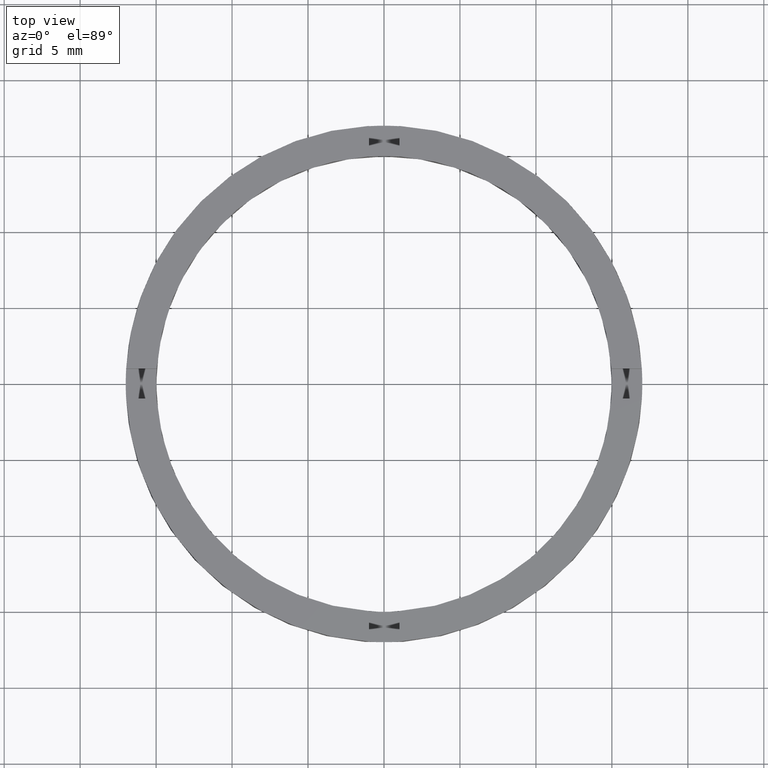
[diagram: clean part render]
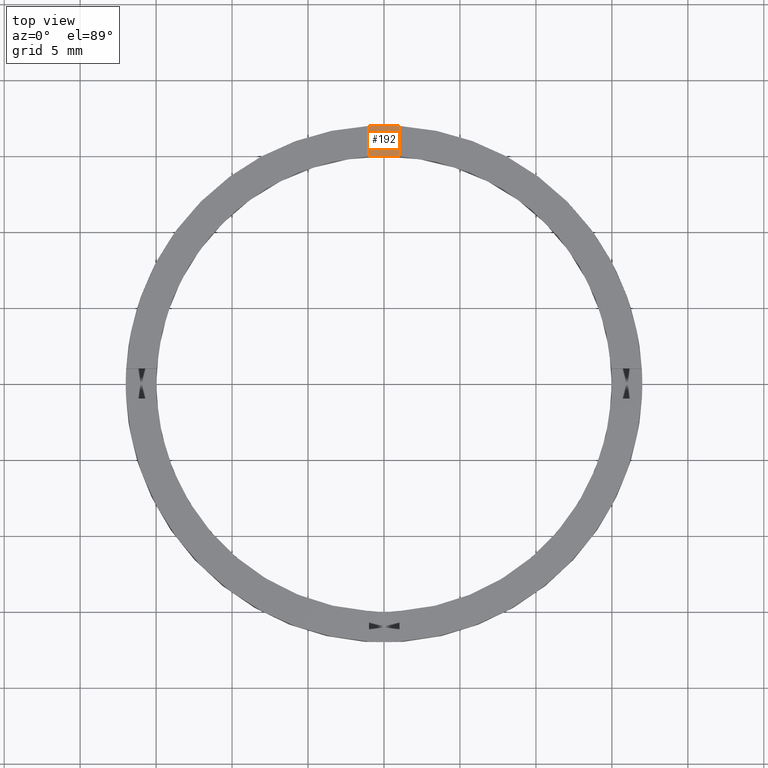
[diagram: same view with one face highlighted and labeled with its STEP entity id]
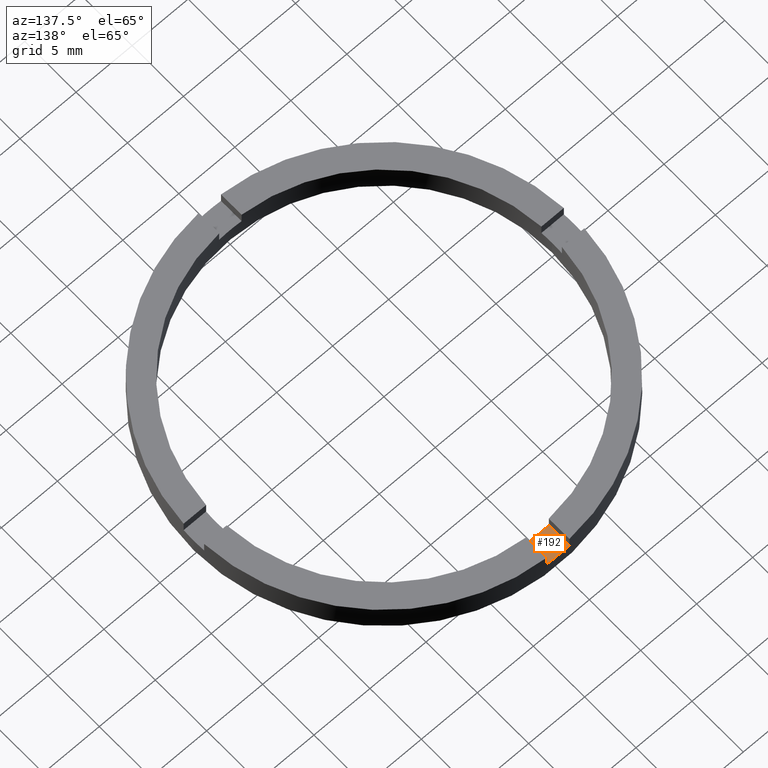
[diagram: same view with one face highlighted and labeled with its STEP entity id]
A machine part, top view. The second image highlights one B-rep face of the part: STEP entity #192.
A second angle (auxiliary view) of the same face is appended — the face is thin or edge-on in the first view.
In plain terms, the highlighted planar face has unit normal (0, -0, 1).
Its self-contained STEP definition (entity closure, byte-faithful):
#34 = DIRECTION ( 'NONE',  ( 0.000000000000000000, -0.000000000000000000, 1.000000000000000000 ) ) ;
#42 = CARTESIAN_POINT ( 'NONE',  ( 0.000000000000000000, 0.000000000000000000, 1.500000000000000000 ) ) ;
#44 = VERTEX_POINT ( 'NONE', #529 ) ;
#53 = PLANE ( 'NONE',  #319 ) ;
#80 = CARTESIAN_POINT ( 'NONE',  ( 0.9999999999999749090, 14.96662954709576709, 1.500000000000000000 ) ) ;
#89 = VERTEX_POINT ( 'NONE', #80 ) ;
#91 = ORIENTED_EDGE ( 'NONE', *, *, #256, .F. ) ;
#99 = DIRECTION ( 'NONE',  ( 0.000000000000000000, -0.000000000000000000, 1.000000000000000000 ) ) ;
#134 = LINE ( 'NONE', #480, #685 ) ;
#135 = VECTOR ( 'NONE', #370, 1000.000000000000000 ) ;
#192 = ADVANCED_FACE ( 'NONE', ( #434 ), #53, .T. ) ;
#211 = CARTESIAN_POINT ( 'NONE',  ( 0.9999999999999749090, 16.97056274847714263, 1.500000000000000000 ) ) ;
#256 = EDGE_CURVE ( 'NONE', #89, #44, #453, .T. ) ;
#274 = DIRECTION ( 'NONE',  ( -0.000000000000000000, -1.000000000000000000, -0.000000000000000000 ) ) ;
#316 = CARTESIAN_POINT ( 'NONE',  ( 0.9999999999999749090, 7.000000000000000888, 1.500000000000000000 ) ) ;
#319 = AXIS2_PLACEMENT_3D ( 'NONE', #395, #533, #478 ) ;
#342 = ORIENTED_EDGE ( 'NONE', *, *, #660, .T. ) ;
#366 = ORIENTED_EDGE ( 'NONE', *, *, #731, .T. ) ;
#370 = DIRECTION ( 'NONE',  ( 0.000000000000000000, 1.000000000000000000, 0.000000000000000000 ) ) ;
#395 = CARTESIAN_POINT ( 'NONE',  ( 0.000000000000000000, 0.000000000000000000, 1.500000000000000000 ) ) ;
#434 = FACE_OUTER_BOUND ( 'NONE', #542, .T. ) ;
#453 = CIRCLE ( 'NONE', #475, 15.00000000000000000 ) ;
#475 = AXIS2_PLACEMENT_3D ( 'NONE', #663, #99, #602 ) ;
#478 = DIRECTION ( 'NONE',  ( 1.000000000000000000, 0.000000000000000000, -0.000000000000000000 ) ) ;
#480 = CARTESIAN_POINT ( 'NONE',  ( -1.000000000000025091, 7.000000000000000888, 1.500000000000000000 ) ) ;
#529 = CARTESIAN_POINT ( 'NONE',  ( -1.000000000000025091, 14.96662954709576354, 1.500000000000000000 ) ) ;
#533 = DIRECTION ( 'NONE',  ( 0.000000000000000000, -0.000000000000000000, 1.000000000000000000 ) ) ;
#534 = EDGE_CURVE ( 'NONE', #574, #609, #673, .T. ) ;
#542 = EDGE_LOOP ( 'NONE', ( #637, #366, #91, #342 ) ) ;
#574 = VERTEX_POINT ( 'NONE', #211 ) ;
#602 = DIRECTION ( 'NONE',  ( 1.000000000000000000, 0.000000000000000000, 0.000000000000000000 ) ) ;
#609 = VERTEX_POINT ( 'NONE', #751 ) ;
#617 = DIRECTION ( 'NONE',  ( 1.000000000000000000, 0.000000000000000000, 0.000000000000000000 ) ) ;
#637 = ORIENTED_EDGE ( 'NONE', *, *, #534, .T. ) ;
#660 = EDGE_CURVE ( 'NONE', #89, #574, #672, .T. ) ;
#663 = CARTESIAN_POINT ( 'NONE',  ( 0.000000000000000000, 0.000000000000000000, 1.500000000000000000 ) ) ;
#672 = LINE ( 'NONE', #316, #135 ) ;
#673 = CIRCLE ( 'NONE', #711, 17.00000000000000000 ) ;
#685 = VECTOR ( 'NONE', #274, 1000.000000000000000 ) ;
#711 = AXIS2_PLACEMENT_3D ( 'NONE', #42, #34, #617 ) ;
#731 = EDGE_CURVE ( 'NONE', #609, #44, #134, .T. ) ;
#751 = CARTESIAN_POINT ( 'NONE',  ( -1.000000000000025091, 16.97056274847713908, 1.500000000000000000 ) ) ;